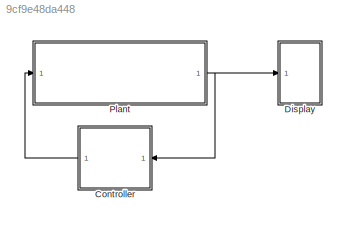
MODEL slx_9cf9e48da448
KIND model
CONFIG AbsTol = auto
CONFIG EnableMultiTasking = off
CONFIG FixedStep = auto
CONFIG InitFcn = start
CONFIG MaxStep = auto
CONFIG MinStep = auto
CONFIG RelTol = 1e-3
CONFIG SampleTimeConstraint = Unconstrained
CONFIG SolverName = VariableStepAuto
CONFIG StartTime = 0.0
CONFIG StopTime = 60.0
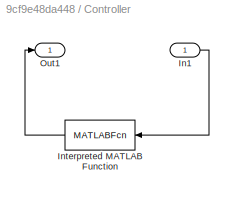
BLOCK [SubSystem] Controller
  Ports = [1, 1]
  RequestExecContextInheritance = off
BLOCK [Inport] Controller/In1
BLOCK [MATLABFcn] Controller/Interpreted MATLAB Function
  MATLABFcn = ctrl
  NameLocation = top
  OutputDimensions = 1
  Ports = [1, 1]
BLOCK [Outport] Controller/Out1
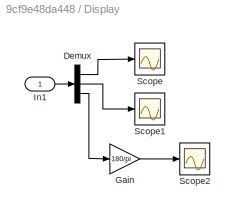
BLOCK [SubSystem] Display
  Ports = [1]
  RequestExecContextInheritance = off
BLOCK [Demux] Display/Demux
  Outputs = 3
  Ports = [1, 3]
BLOCK [Gain] Display/Gain
  Gain = 180/pi
BLOCK [Inport] Display/In1
BLOCK [Scope] Display/Scope
  Floating = off
  NumInputPorts = 1
  Ports = [1]
  ScopeSpecificationString = Simulink.scopes.TimeScopeBlockCfg('CurrentConfiguration', extmgr.ConfigurationSet(extmgr.Configuration('Core','General UI',true),extmgr.Configuration('Core','Source UI',true),extmgr.Configuration('Sources','WiredSimulink',true),extmgr.Configuration('Visuals','Time Domain',true,'SerializedDisplays',{struct('MinYLimReal','-0.01456','MaxYLimReal','0.13107','YLabelReal','','MinYLimMag','0.00000','MaxY...<+1475ch>
BLOCK [Scope] Display/Scope1
  Floating = off
  NumInputPorts = 1
  Ports = [1]
  ScopeSpecificationString = Simulink.scopes.TimeScopeBlockCfg('CurrentConfiguration', extmgr.ConfigurationSet(extmgr.Configuration('Core','General UI',true),extmgr.Configuration('Core','Source UI',true),extmgr.Configuration('Sources','WiredSimulink',true,'DataLoggingVariableName','ScopeData1'),extmgr.Configuration('Visuals','Time Domain',true,'SerializedDisplays',{struct('MinYLimReal','-0.06145','MaxYLimReal','0.2381','YLabe...<+1510ch>
BLOCK [Scope] Display/Scope2
  Floating = off
  NumInputPorts = 1
  Ports = [1]
  ScopeSpecificationString = Simulink.scopes.TimeScopeBlockCfg('CurrentConfiguration', extmgr.ConfigurationSet(extmgr.Configuration('Core','General UI',true),extmgr.Configuration('Core','Source UI',true),extmgr.Configuration('Sources','WiredSimulink',true,'DataLoggingVariableName','ScopeData2'),extmgr.Configuration('Visuals','Time Domain',true,'SerializedDisplays',{struct('MinYLimReal','-1.09812','MaxYLimReal','9.88311','YLab...<+1537ch>
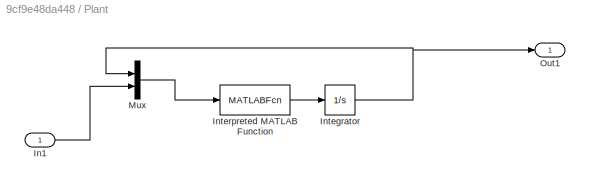
BLOCK [SubSystem] Plant
  Ports = [1, 1]
  RequestExecContextInheritance = off
BLOCK [Inport] Plant/In1
BLOCK [Integrator] Plant/Integrator
  InitialCondition = x0
  Ports = [1, 1]
BLOCK [MATLABFcn] Plant/Interpreted MATLAB Function
  MATLABFcn = rp
  OutputDimensions = 3
  Ports = [1, 1]
BLOCK [Mux] Plant/Mux
  DisplayOption = bar
  Inputs = 2
  Ports = [2, 1]
BLOCK [Outport] Plant/Out1
LINE Controller/In1:1 -> Controller/Interpreted MATLAB Function:1
LINE Controller/Interpreted MATLAB Function:1 -> Controller/Out1:1
LINE Controller:1 -> Plant:1
LINE Display/Demux:1 -> Display/Scope:1
LINE Display/Demux:2 -> Display/Scope1:1
LINE Display/Demux:3 -> Display/Gain:1
LINE Display/Gain:1 -> Display/Scope2:1
LINE Display/In1:1 -> Display/Demux:1
LINE Plant/In1:1 -> Plant/Mux:2
NET Plant/Integrator:1 -> Plant/Mux:1, Plant/Out1:1
LINE Plant/Interpreted MATLAB Function:1 -> Plant/Integrator:1
LINE Plant/Mux:1 -> Plant/Interpreted MATLAB Function:1
NET Plant:1 -> Controller:1, Display:1
note: NET lines group one-source signal fan-out (src -> all destinations, sorted); 1:1 wires keep LINE
